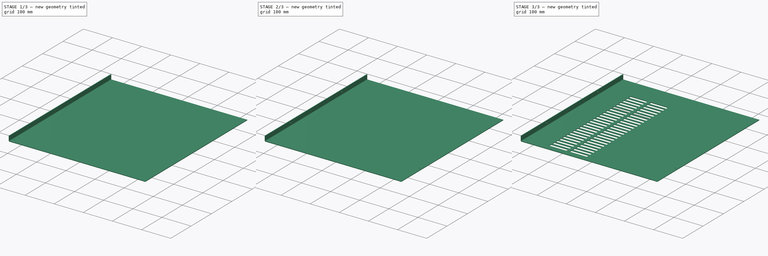
[diagram: build sequence overview — one tinted view per stage of 3, left to right]
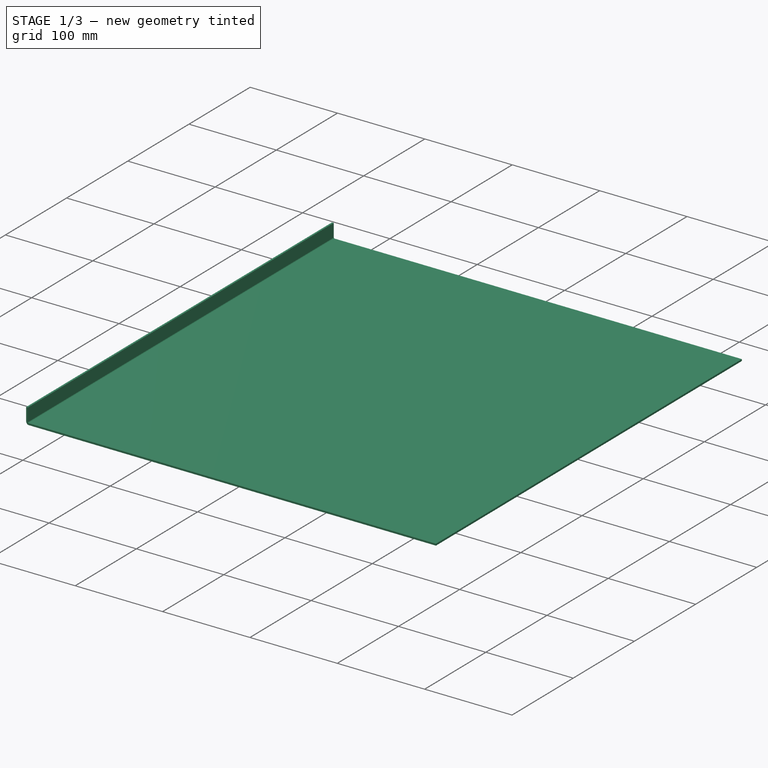
[diagram: stage 1 of 3 — iso view after this stage's code; geometry added in this stage tinted green]
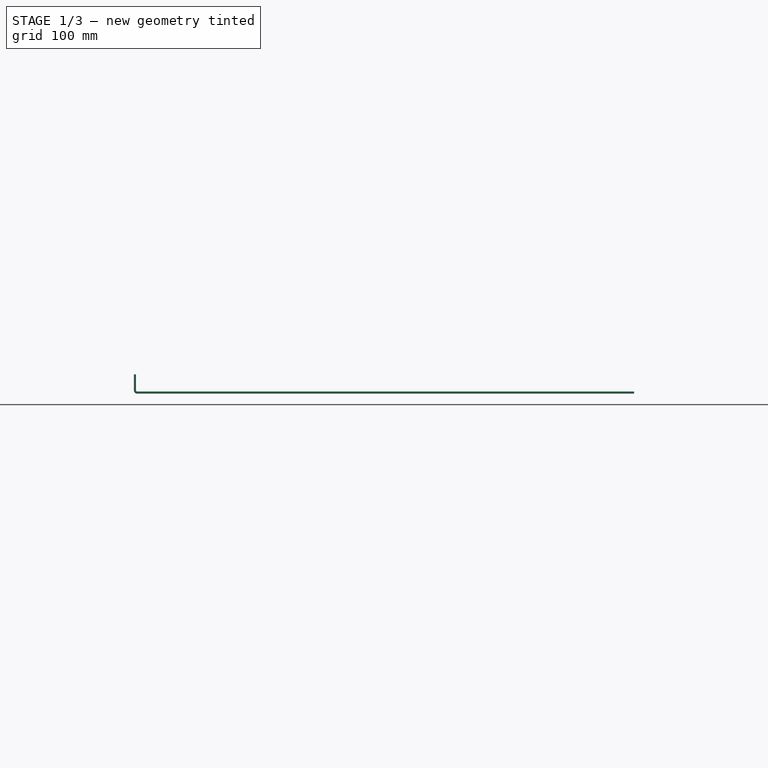
[diagram: stage 1 of 3 — front view after this stage's code; geometry added in this stage tinted green]
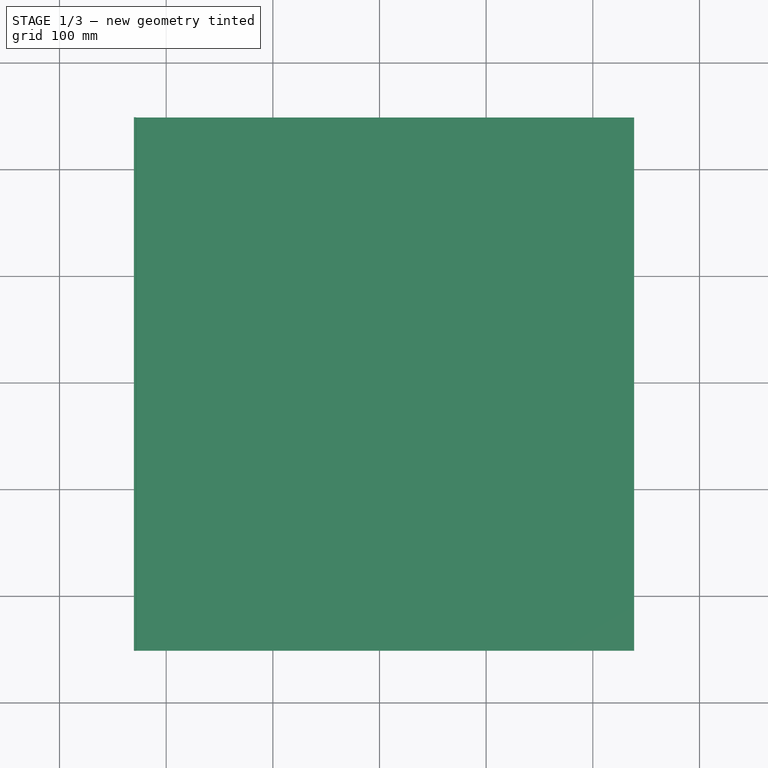
[diagram: stage 1 of 3 — top view after this stage's code; geometry added in this stage tinted green]
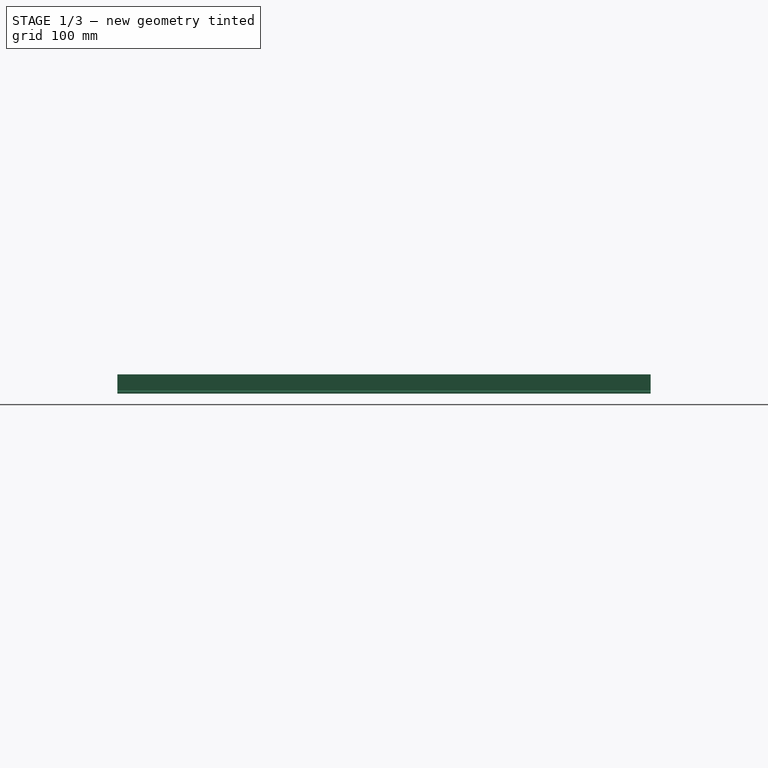
[diagram: stage 1 of 3 — right view after this stage's code; geometry added in this stage tinted green]
FCSTD DOCUMENT  (FreeCAD 0.16R6698 (Git))
Label: Side_Back_Bended_Coating
License: All rights reserved
LicenseURL: http://en.wikipedia.org/wiki/All_rights_reserved
objects: Sketcher::SketchObject×4, PartDesign::Pocket×3, PartDesign::Pad×1, Part::FeaturePython×1, PartDesign::LinearPattern×1
note: 14 computed .brp shape members not serialized (recipe doc carries the construction recipe); baked Part::Feature solids carry a one-line shape summary decoded from their .brp

FEATURE [Sketcher::SketchObject] Sketch
  sketch-geometry (4):
    g0: LineSegment StartX=-227.286 StartY=248.787 StartZ=0 EndX=238.714 EndY=248.787 EndZ=0
    g1: LineSegment StartX=238.714 StartY=248.787 StartZ=0 EndX=238.714 EndY=-251.213 EndZ=0
    g2: LineSegment StartX=238.714 StartY=-251.213 StartZ=0 EndX=-227.286 EndY=-251.213 EndZ=0
    g3: LineSegment StartX=-227.286 StartY=-251.213 StartZ=0 EndX=-227.286 EndY=248.787 EndZ=0
  constraints (10):
    c: Coincident(g0,g1)
    c: Coincident(g1,g2)
    c: Coincident(g2,g3)
    c: Coincident(g3,g0)
    c: Horizontal(g0)
    c: Horizontal(g2)
    c: Vertical(g1)
    c: Vertical(g3)
    c: DistanceY(g1,g1) = 500
    c: DistanceX(g0,g0) = 466
FEATURE [PartDesign::Pad] Pad
  Length = 2
  Length2 = 100
  Sketch = -> Sketch
  Type = 0
FEATURE [Part::FeaturePython] Bend  # WARN: FeaturePython — macro-defined, semantics opaque (R4)
  angle = 90
  baseObject = -> Pad [Face4]
  gap1 = 0
  gap2 = 0
  invert = false
  length = 15
  radius = 1
  reliefd = 1
  reliefw = 0.5
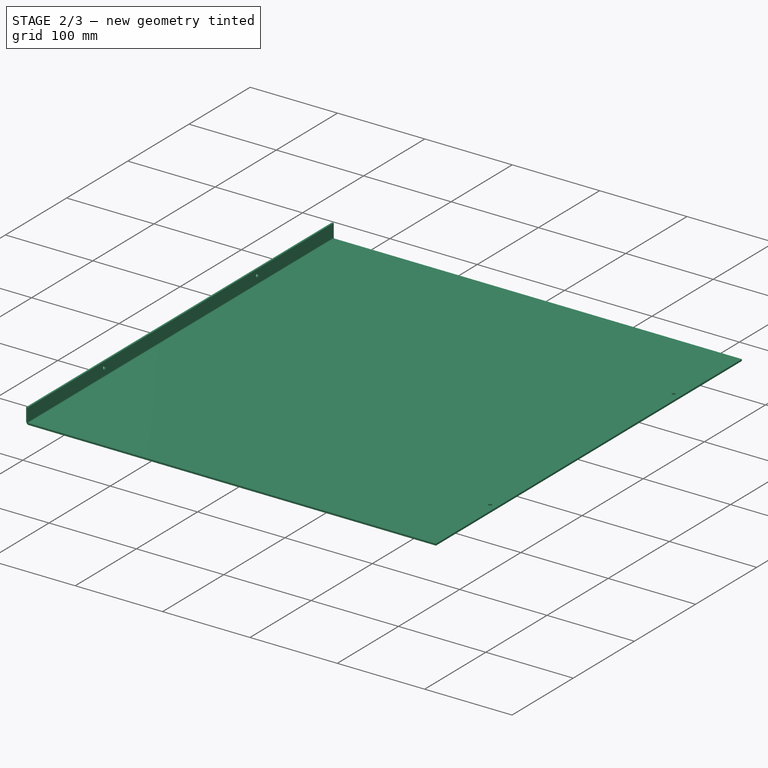
[diagram: stage 2 of 3 — iso view after this stage's code; geometry added in this stage tinted green]
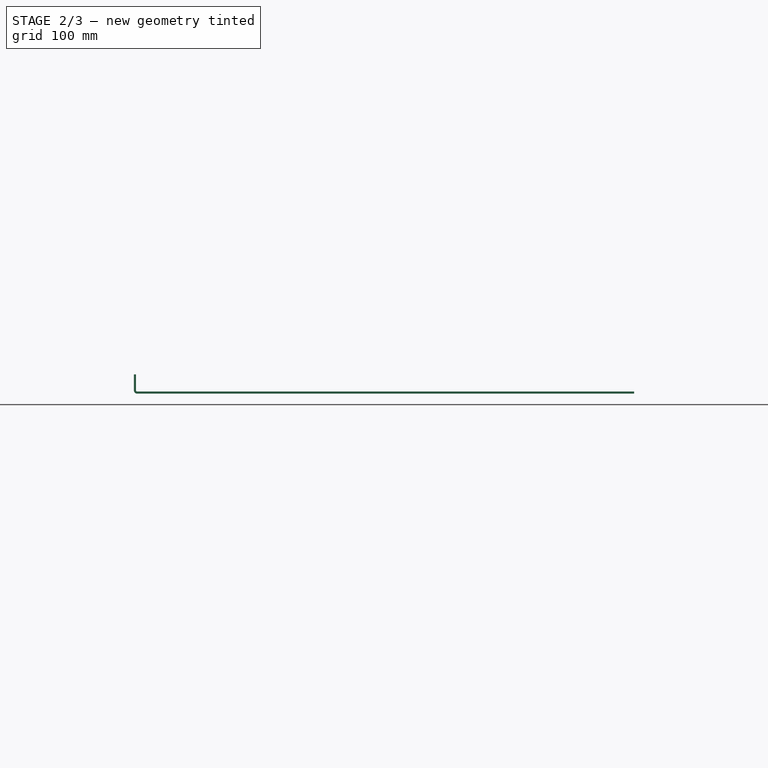
[diagram: stage 2 of 3 — front view after this stage's code; geometry added in this stage tinted green]
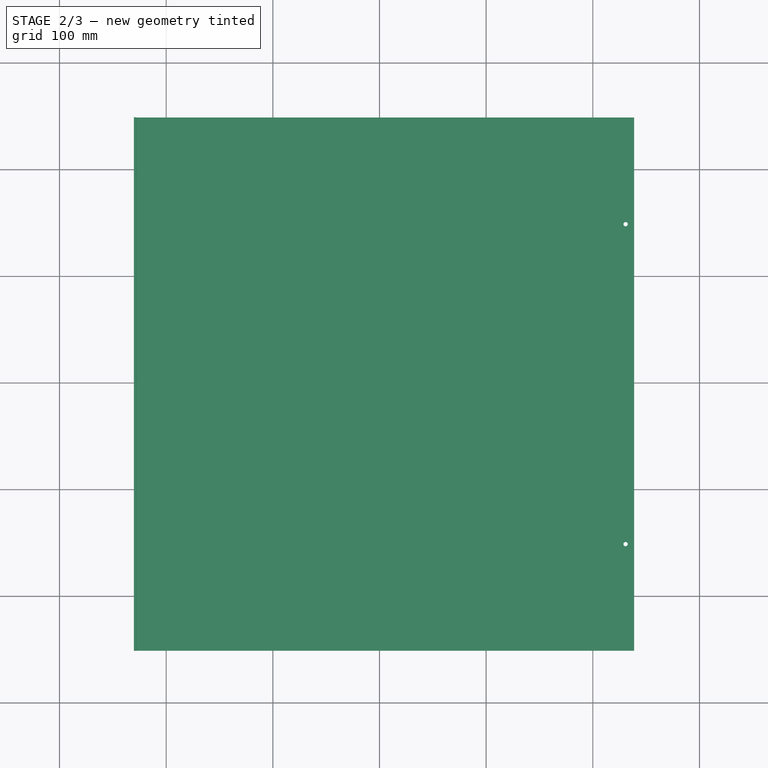
[diagram: stage 2 of 3 — top view after this stage's code; geometry added in this stage tinted green]
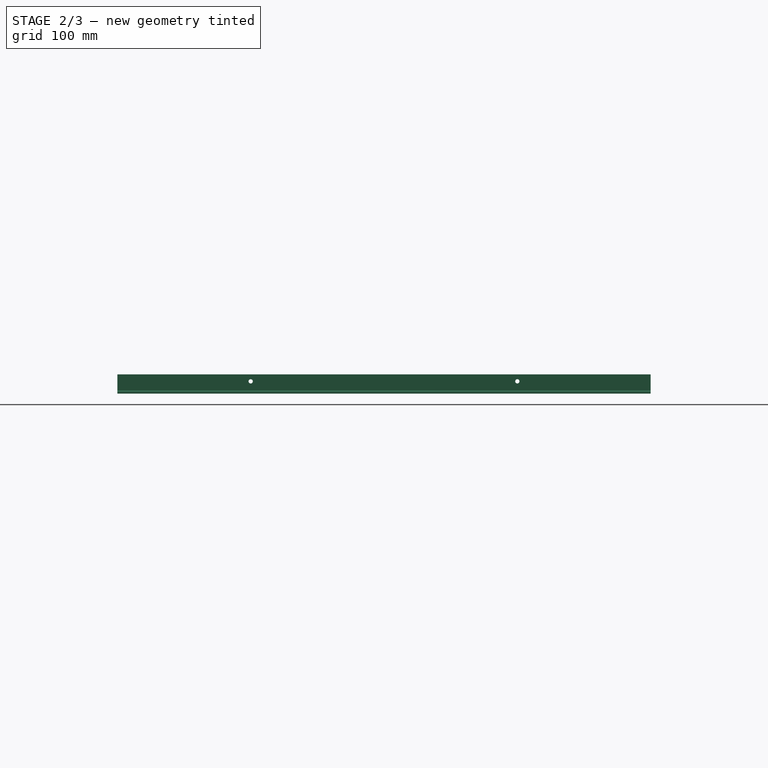
[diagram: stage 2 of 3 — right view after this stage's code; geometry added in this stage tinted green]
FEATURE [Sketcher::SketchObject] Sketch001
  ExternalGeometry = -> [Bend]
  Placement = pos=(-230.286,0,0) rot=(0.57735,-0.57735,-0.57735;2.0944rad)
  Support = -> Bend [Face4]
  sketch-geometry (2):
    g0: Circle CenterX=-123.787 CenterY=11.5 CenterZ=0 NormalX=0 NormalY=0 NormalZ=1 Radius=2
    g1: Circle CenterX=126.213 CenterY=11.5 CenterZ=0 NormalX=0 NormalY=0 NormalZ=1 Radius=2
  constraints (6):
    c: Radius(g1) = 2
    c: Equal(g1,g0)
    c: DistanceX(g0,g1) = 250
    c: DistanceY(g0,g1) = 0
    c: DistanceX(g-3,g0) = 125
    c: DistanceY(g0,g-3) = 6.5
FEATURE [PartDesign::Pocket] Pocket
  Length = 5
  Sketch = -> Sketch001
  Type = 0
FEATURE [Sketcher::SketchObject] Sketch002
  ExternalGeometry = -> [Pocket]
  Placement = pos=(0,0,0) rot=(1,0,0;3.14159rad)
  Support = -> Pocket [Face14]
  sketch-geometry (2):
    g0: Circle CenterX=230.714 CenterY=151.213 CenterZ=0 NormalX=0 NormalY=0 NormalZ=1 Radius=2
    g1: Circle CenterX=230.714 CenterY=-148.787 CenterZ=0 NormalX=0 NormalY=0 NormalZ=1 Radius=2
  constraints (6):
    c: DistanceX(g0,g1) = 0
    c: DistanceY(g1,g0) = 300
    c: DistanceY(g0,g-3) = 100
    c: DistanceX(g0,g-3) = 8
    c: Radius(g0) = 2
    c: Equal(g0,g1)
FEATURE [PartDesign::Pocket] Pocket001
  Length = 5
  Sketch = -> Sketch002
  Type = 0
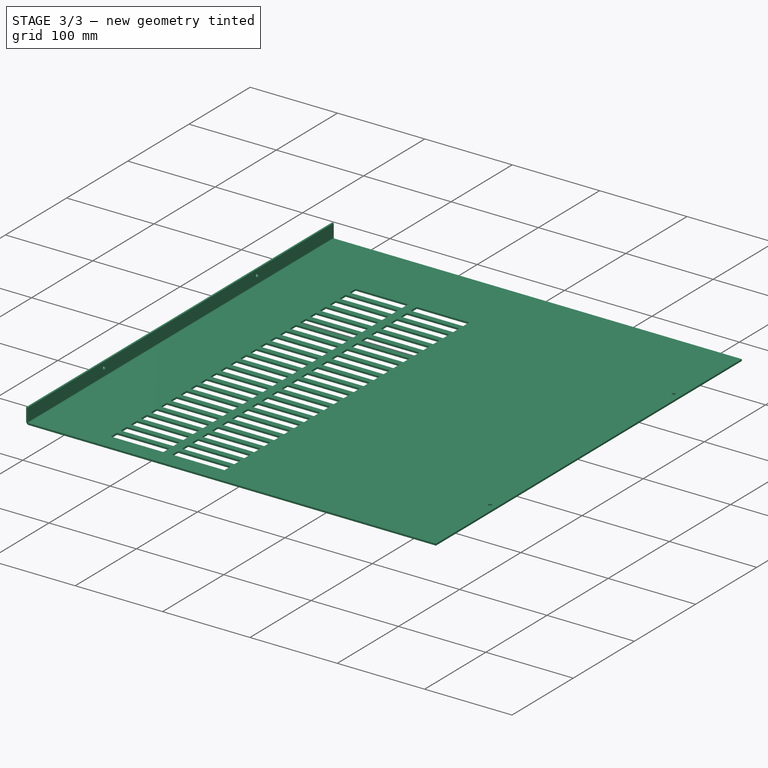
[diagram: stage 3 of 3 — iso view after this stage's code; geometry added in this stage tinted green]
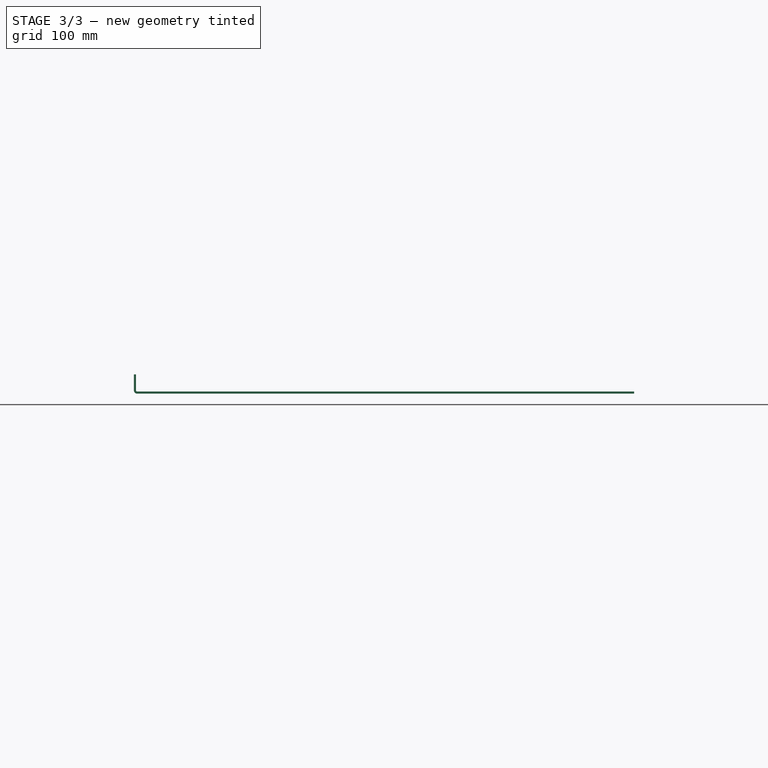
[diagram: stage 3 of 3 — front view after this stage's code; geometry added in this stage tinted green]
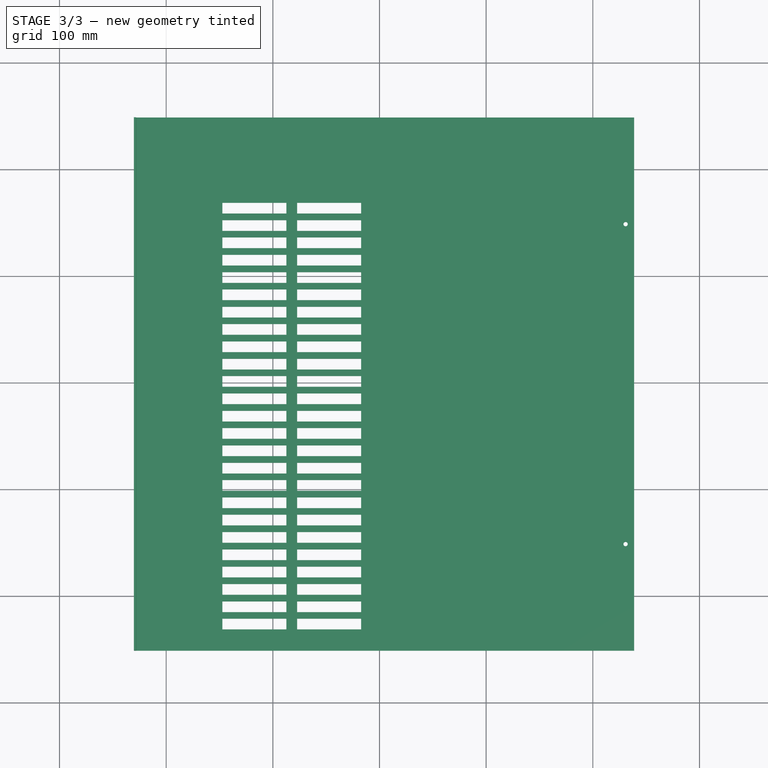
[diagram: stage 3 of 3 — top view after this stage's code; geometry added in this stage tinted green]
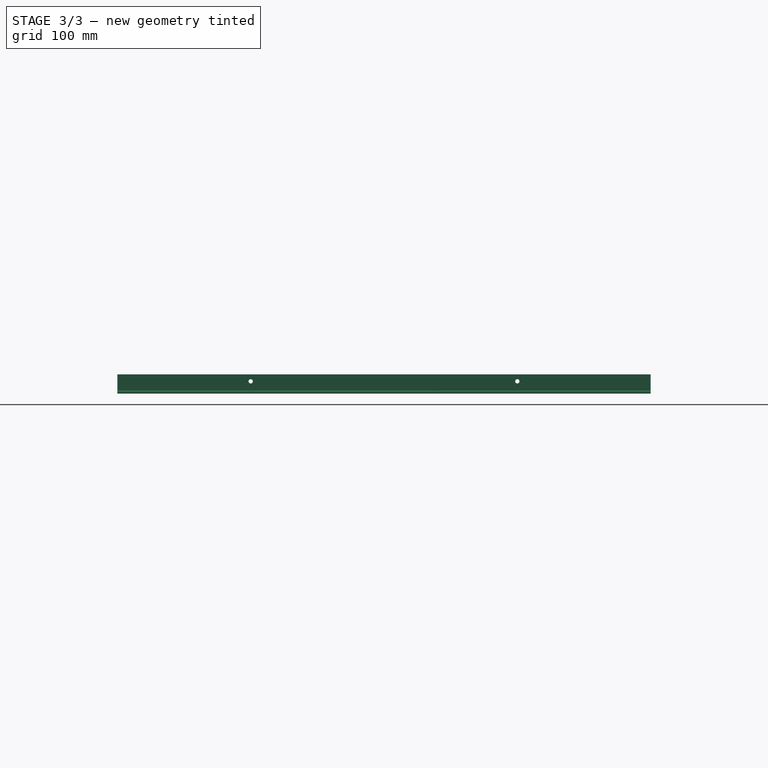
[diagram: stage 3 of 3 — right view after this stage's code; geometry added in this stage tinted green]
FEATURE [Sketcher::SketchObject] Sketch003
  ExternalGeometry = -> [Pocket001]
  Placement = pos=(0,0,0) rot=(1,0,0;3.14159rad)
  Support = -> Pocket001 [Face14]
  sketch-geometry (8):
    g0: LineSegment StartX=-147.286 StartY=231.213 StartZ=0 EndX=-87.2865 EndY=231.213 EndZ=0
    g1: LineSegment StartX=-17.2865 StartY=231.213 StartZ=0 EndX=-17.2865 EndY=221.213 EndZ=0
    g2: LineSegment StartX=-17.2865 StartY=221.213 StartZ=0 EndX=-77.2865 EndY=221.213 EndZ=0
    g3: LineSegment StartX=-147.286 StartY=221.213 StartZ=0 EndX=-147.286 EndY=231.213 EndZ=0
    g4: LineSegment StartX=-87.2865 StartY=231.213 StartZ=0 EndX=-87.2865 EndY=221.213 EndZ=0
    g5: LineSegment StartX=-77.2865 StartY=231.213 StartZ=0 EndX=-77.2865 EndY=221.213 EndZ=0
    g6: LineSegment StartX=-77.2865 StartY=231.213 StartZ=0 EndX=-17.2865 EndY=231.213 EndZ=0
    g7: LineSegment StartX=-87.2865 StartY=221.213 StartZ=0 EndX=-147.286 EndY=221.213 EndZ=0
  constraints (22):
    c: Coincident(g6,g1)
    c: Coincident(g1,g2)
    c: Coincident(g7,g3)
    c: Coincident(g3,g0)
    c: Horizontal(g0)
    c: Horizontal(g2)
    c: Vertical(g1)
    c: Vertical(g3)
    c: DistanceY(g3,g3) = 10
    c: DistanceX(g0,g6) = 130
    c: DistanceX(g-4,g0) = 80
    c: DistanceY(g0,g-4) = 20
    c: Vertical(g4)
    c: Vertical(g5)
    c: Coincident(g0,g4)
    c: Coincident(g6,g5)
    c: Tangent(g0,g6)
    c: Coincident(g2,g5)
    c: Coincident(g7,g4)
    c: Tangent(g2,g7)
    c: DistanceX(g0,g0) = 60
    c: DistanceX(g6,g6) = 60
FEATURE [PartDesign::Pocket] Pocket002
  Length = 5
  Sketch = -> Sketch003
  Type = 0
FEATURE [PartDesign::LinearPattern] LinearPattern
  Direction = -> Sketch003 [V_Axis]
  Length = 390
  Occurrences = 25
  Originals = -> [Pocket002]
  Reversed = true
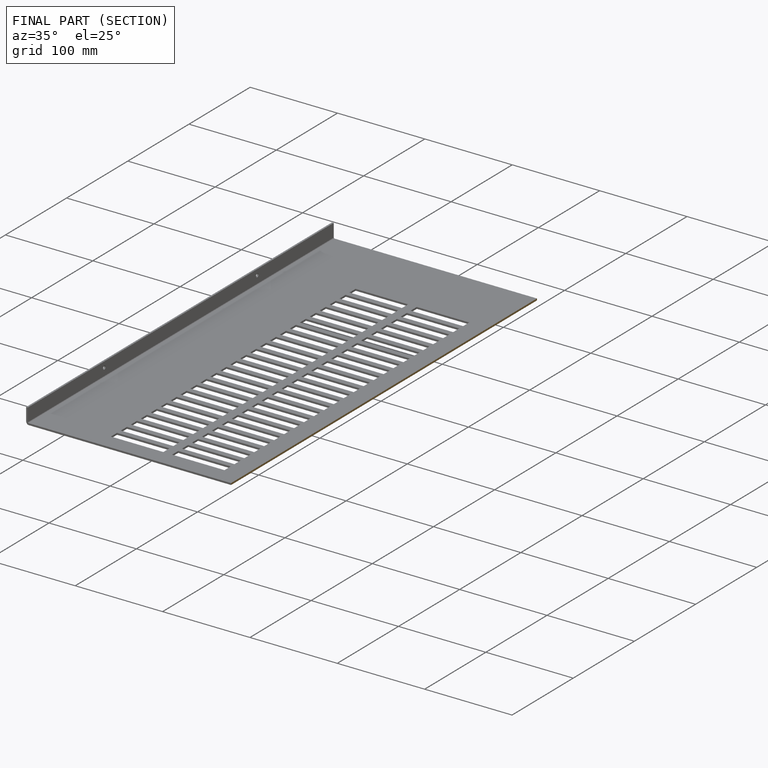
[diagram: finished part — half-section view (interior)]
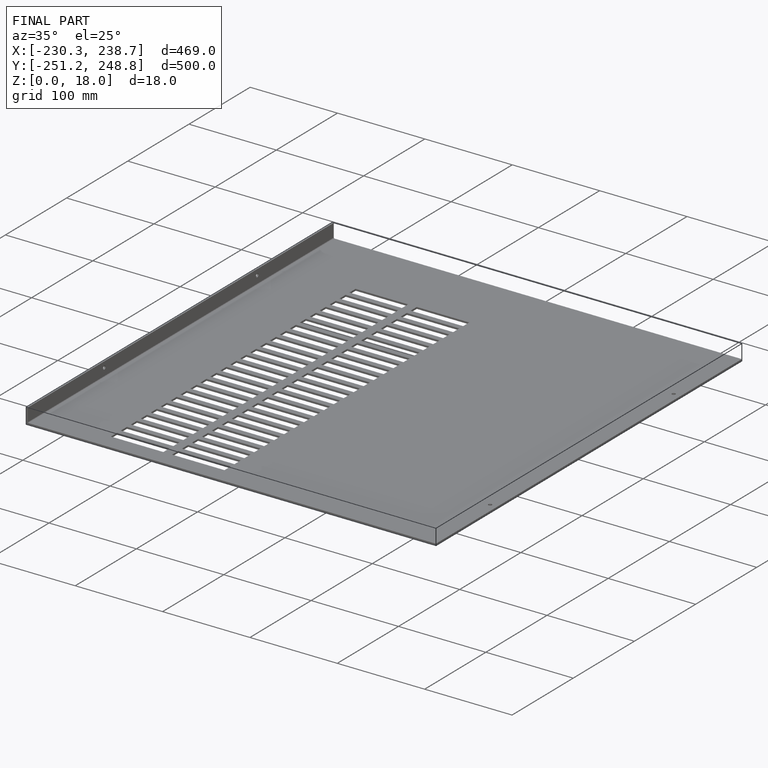
[diagram: finished part — iso view with bounding-box wireframe]
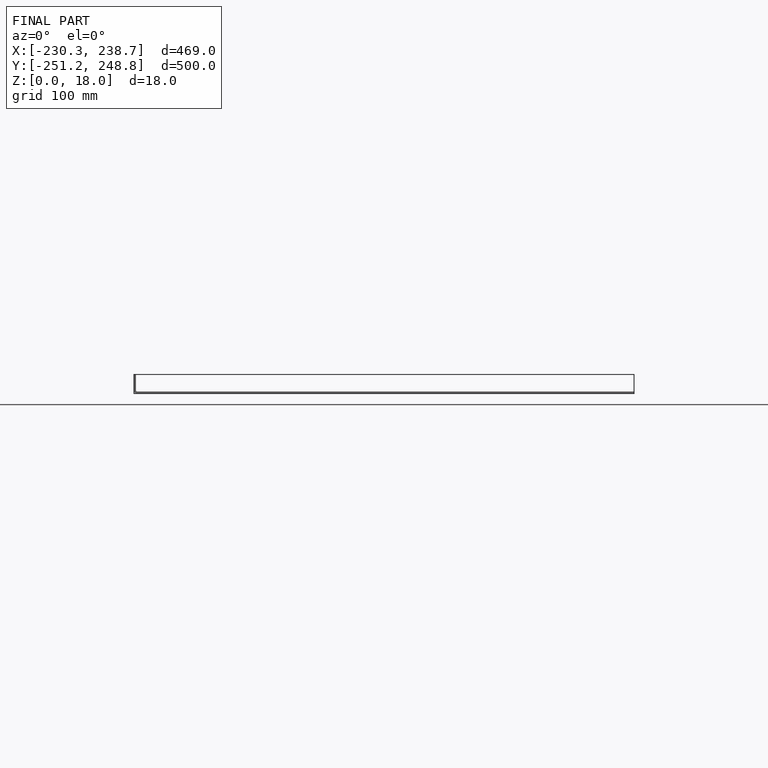
[diagram: finished part — front view with bounding-box wireframe]
